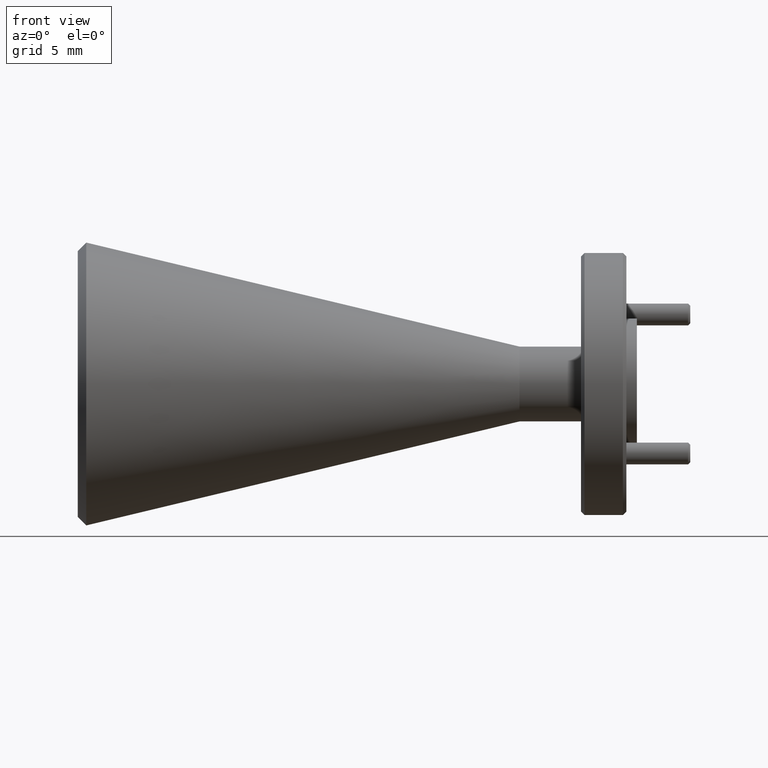
[diagram: clean part render]
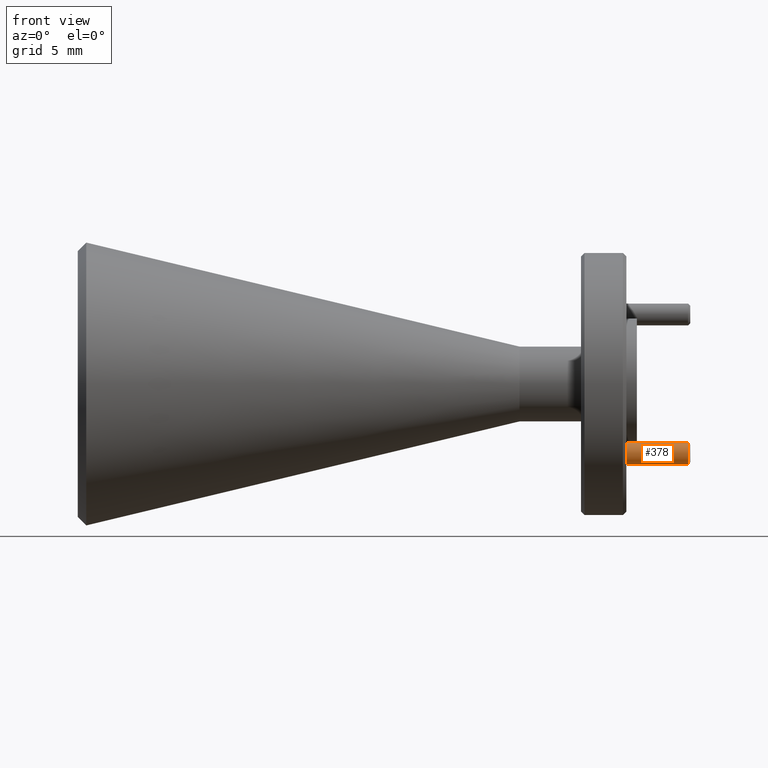
[diagram: same view with one face highlighted and labeled with its STEP entity id]
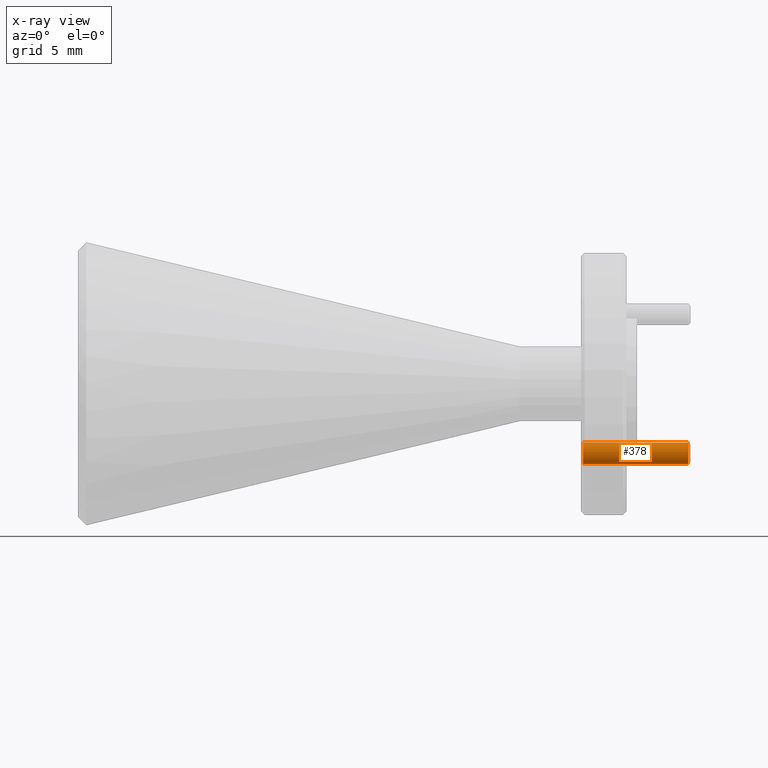
[diagram: x-ray of the same camera — body ghosted, the highlighted face saturated]
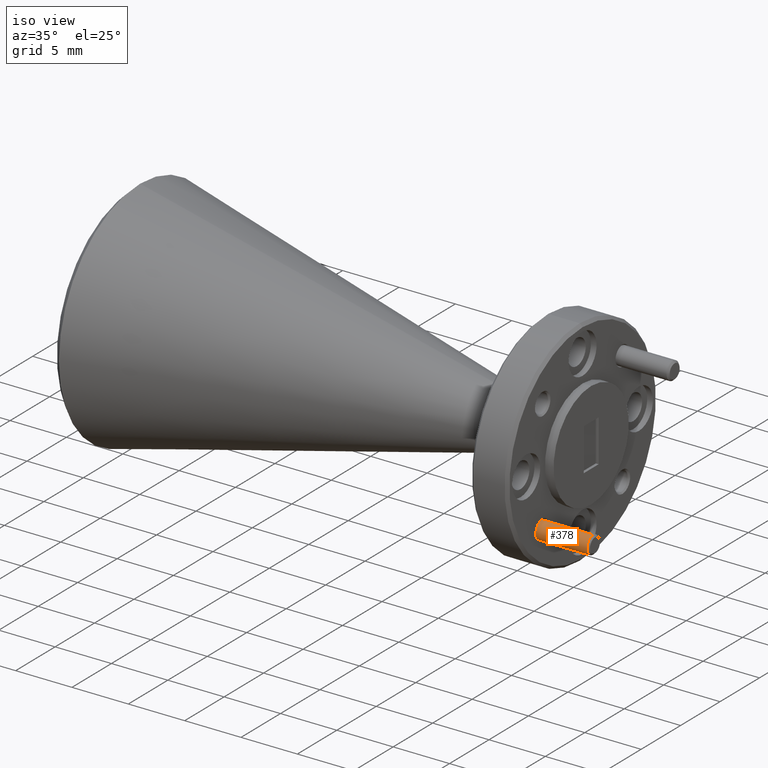
[diagram: same view with one face highlighted and labeled with its STEP entity id]
A machine part, front view. The second image highlights one B-rep face of the part: STEP entity #378.
The next image is the same camera in x-ray: the body ghosted, the highlighted face saturated — about 0% of this face is hidden behind the body in this view.
A second angle (iso view) of the same face is appended — the face is thin or edge-on in the first view.
In plain terms, the highlighted cylindrical surface (edge-blend (fillet) strip) has radius 0.7938 mm, axis along (1, -0, 0).
Its self-contained STEP definition (entity closure, byte-faithful):
#43 = CARTESIAN_POINT ( 'NONE',  ( 1.053587875290412900, 0.4422152192812464600, 0.6762760569557879600 ) ) ;
#133 = LINE ( 'NONE', #1060, #293 ) ;
#154 = DIRECTION ( 'NONE',  ( 1.000000000000000000, -2.996702551964276000E-016, 5.818496234929236900E-016 ) ) ;
#198 = LINE ( 'NONE', #265, #1707 ) ;
#220 = CARTESIAN_POINT ( 'NONE',  ( 1.053587875290412900, 0.4422152192812483500, 0.7387760569557888500 ) ) ;
#235 = DIRECTION ( 'NONE',  ( 0.0000000000000000000, 4.370956789862691000E-015, -1.000000000000000000 ) ) ;
#265 = CARTESIAN_POINT ( 'NONE',  ( 1.047337875290413400, 0.4422152192812483500, 0.7387760569557854100 ) ) ;
#293 = VECTOR ( 'NONE', #387, 39.37007874015748100 ) ;
#365 = CARTESIAN_POINT ( 'NONE',  ( 1.353587875290399100, 0.4422152192812483500, 0.7387760569557931800 ) ) ;
#378 = ADVANCED_FACE ( 'NONE', ( #379 ), #1791, .T. ) ;
#379 = FACE_OUTER_BOUND ( 'NONE', #1053, .T. ) ;
#387 = DIRECTION ( 'NONE',  ( 1.000000000000000000, -2.996702551964276000E-016, 5.818496234929236900E-016 ) ) ;
#390 = DIRECTION ( 'NONE',  ( -1.000000000000000000, 2.996702551964276000E-016, -5.818496234929236900E-016 ) ) ;
#493 = VERTEX_POINT ( 'NONE', #43 ) ;
#508 = ORIENTED_EDGE ( 'NONE', *, *, #1100, .T. ) ;
#581 = EDGE_CURVE ( 'NONE', #1338, #1085, #198, .T. ) ;
#626 = AXIS2_PLACEMENT_3D ( 'NONE', #1988, #154, #1317 ) ;
#714 = ORIENTED_EDGE ( 'NONE', *, *, #581, .F. ) ;
#829 = ORIENTED_EDGE ( 'NONE', *, *, #1857, .T. ) ;
#883 = AXIS2_PLACEMENT_3D ( 'NONE', #1069, #1043, #235 ) ;
#900 = CARTESIAN_POINT ( 'NONE',  ( 1.353587875290399100, 0.4422152192812456300, 0.6762760569557922900 ) ) ;
#935 = DIRECTION ( 'NONE',  ( 1.000000000000000000, -2.996702551964276000E-016, 5.818496234929236900E-016 ) ) ;
#1043 = DIRECTION ( 'NONE',  ( 1.000000000000000000, -2.996702551964276000E-016, 5.818496234929236900E-016 ) ) ;
#1044 = CARTESIAN_POINT ( 'NONE',  ( 1.353587875290399100, 0.4422152192812455200, 0.7075260569557932900 ) ) ;
#1053 = EDGE_LOOP ( 'NONE', ( #714, #829, #1539, #508 ) ) ;
#1060 = CARTESIAN_POINT ( 'NONE',  ( 1.047337875290413400, 0.4422152192812486300, 0.6762760569557835200 ) ) ;
#1069 = CARTESIAN_POINT ( 'NONE',  ( 1.047337875290413400, 0.4422152192812485200, 0.7075260569557845200 ) ) ;
#1085 = VERTEX_POINT ( 'NONE', #365 ) ;
#1100 = EDGE_CURVE ( 'NONE', #1823, #1085, #1186, .T. ) ;
#1178 = AXIS2_PLACEMENT_3D ( 'NONE', #1044, #390, #1235 ) ;
#1186 = CIRCLE ( 'NONE', #1178, 0.03125000000000093000 ) ;
#1235 = DIRECTION ( 'NONE',  ( 0.0000000000000000000, 4.370956789862691000E-015, -1.000000000000000000 ) ) ;
#1317 = DIRECTION ( 'NONE',  ( 0.0000000000000000000, 4.370956789862691000E-015, -1.000000000000000000 ) ) ;
#1338 = VERTEX_POINT ( 'NONE', #220 ) ;
#1539 = ORIENTED_EDGE ( 'NONE', *, *, #2136, .T. ) ;
#1602 = CIRCLE ( 'NONE', #626, 0.03125000000000093000 ) ;
#1707 = VECTOR ( 'NONE', #935, 39.37007874015748100 ) ;
#1791 = CYLINDRICAL_SURFACE ( 'NONE', #883, 0.03125000000000093000 ) ;
#1823 = VERTEX_POINT ( 'NONE', #900 ) ;
#1857 = EDGE_CURVE ( 'NONE', #1338, #493, #1602, .T. ) ;
#1988 = CARTESIAN_POINT ( 'NONE',  ( 1.053587875290412900, 0.4422152192812463000, 0.7075260569557888500 ) ) ;
#2136 = EDGE_CURVE ( 'NONE', #493, #1823, #133, .T. ) ;